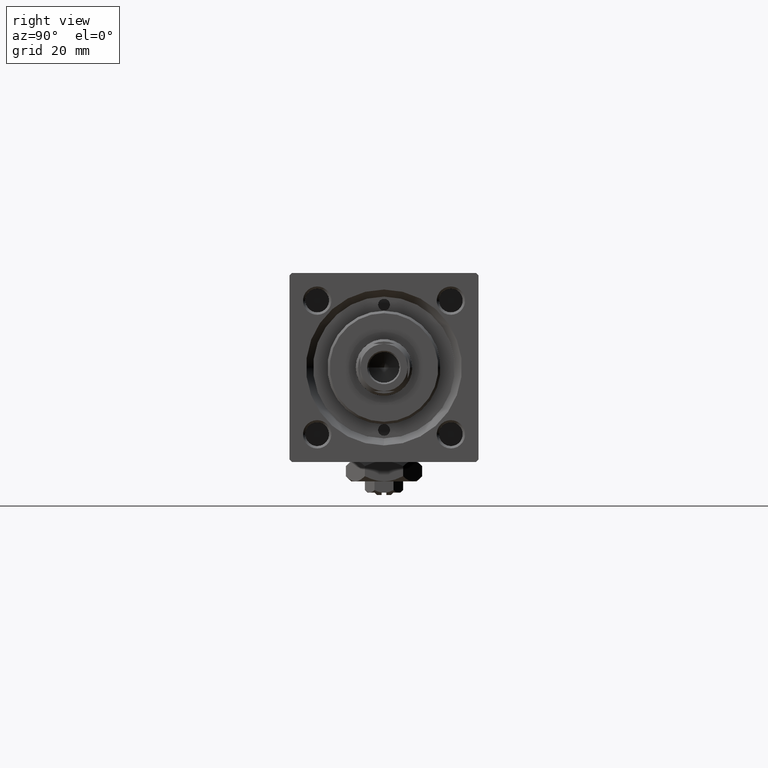
[diagram: clean part render]
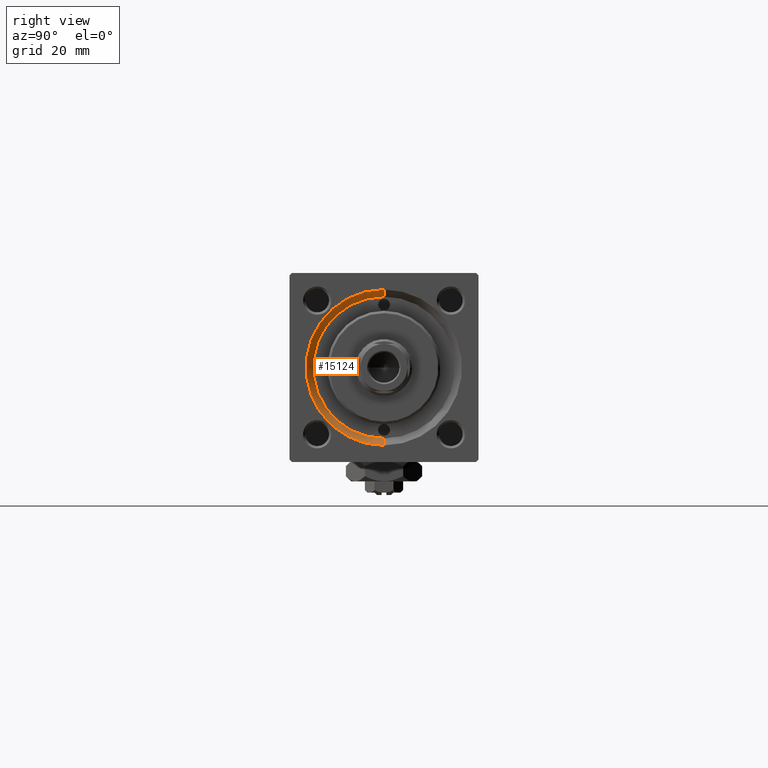
[diagram: same view with one face highlighted and labeled with its STEP entity id]
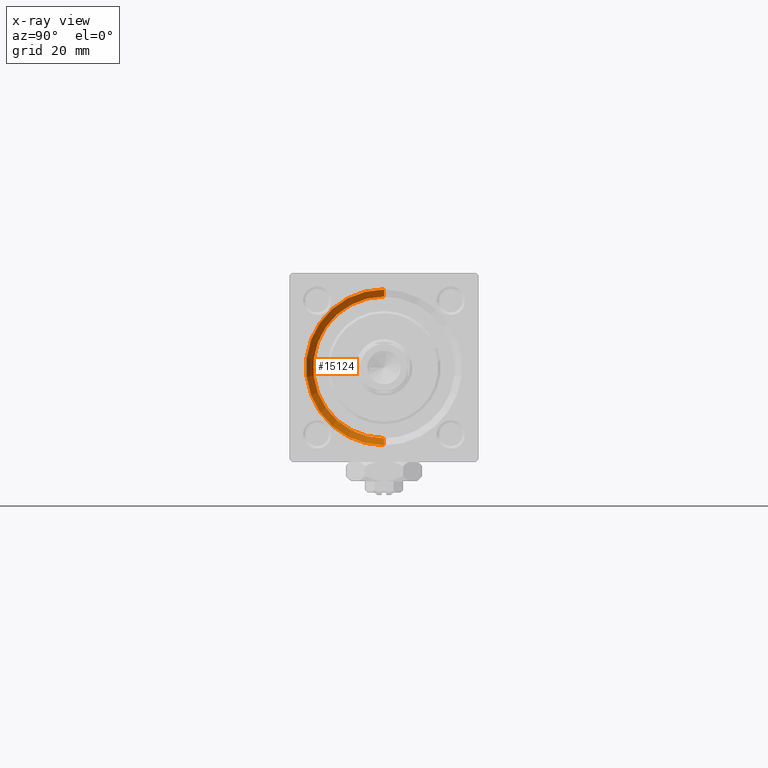
[diagram: x-ray of the same camera — body ghosted, the highlighted face saturated]
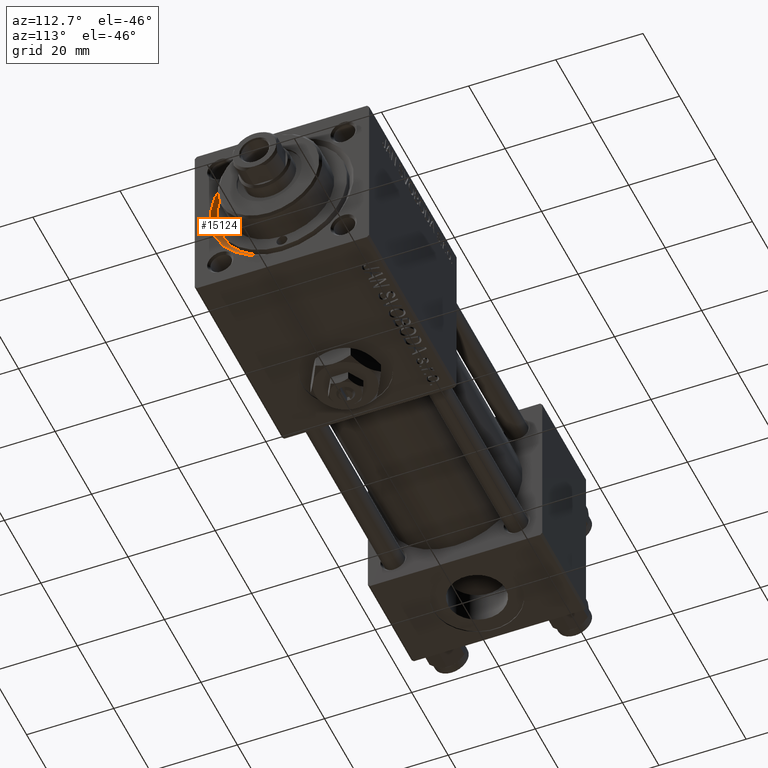
[diagram: same view with one face highlighted and labeled with its STEP entity id]
A machine part, right view. The second image highlights one B-rep face of the part: STEP entity #15124.
The next image is the same camera in x-ray: the body ghosted, the highlighted face saturated — about 0% of this face is hidden behind the body in this view.
A second angle (auxiliary view) of the same face is appended — the face is thin or edge-on in the first view.
In plain terms, the highlighted conical surface has half-angle 45 deg.
Its self-contained STEP definition (entity closure, byte-faithful):
#2301 = EDGE_CURVE ( 'NONE', #17673, #35570, #37602, .T. ) ;
#2739 = DIRECTION ( 'NONE',  ( 0.7071067811865474617, 8.659560562354932858E-17, 0.7071067811865474617 ) ) ;
#3839 = CARTESIAN_POINT ( 'NONE',  ( 117.5000000000000000, 0.000000000000000000, 0.000000000000000000 ) ) ;
#5509 = CARTESIAN_POINT ( 'NONE',  ( 119.0000000000000142, 0.000000000000000000, 0.000000000000000000 ) ) ;
#7532 = DIRECTION ( 'NONE',  ( 1.000000000000000000, 0.000000000000000000, 0.000000000000000000 ) ) ;
#8614 = EDGE_CURVE ( 'NONE', #35570, #15976, #43008, .T. ) ;
#10266 = EDGE_CURVE ( 'NONE', #15976, #29190, #43593, .T. ) ;
#10959 = EDGE_CURVE ( 'NONE', #17673, #29190, #46617, .T. ) ;
#11212 = ORIENTED_EDGE ( 'NONE', *, *, #8614, .F. ) ;
#11414 = ORIENTED_EDGE ( 'NONE', *, *, #10959, .T. ) ;
#14349 = CARTESIAN_POINT ( 'NONE',  ( 117.5000000000000000, 0.000000000000000000, 0.000000000000000000 ) ) ;
#14674 = CARTESIAN_POINT ( 'NONE',  ( 117.5000000000000000, 0.000000000000000000, -15.00000000000000000 ) ) ;
#15124 = ADVANCED_FACE ( 'NONE', ( #44276 ), #20356, .F. ) ;
#15976 = VERTEX_POINT ( 'NONE', #40360 ) ;
#16243 = CARTESIAN_POINT ( 'NONE',  ( 117.5000000000000000, 0.000000000000000000, -15.00000000000000000 ) ) ;
#17584 = VECTOR ( 'NONE', #42747, 1000.000000000000114 ) ;
#17673 = VERTEX_POINT ( 'NONE', #40485 ) ;
#20333 = ORIENTED_EDGE ( 'NONE', *, *, #10266, .F. ) ;
#20356 = CONICAL_SURFACE ( 'NONE', #51385, 15.00000000000000000, 0.7853981633974482790 ) ;
#23555 = DIRECTION ( 'NONE',  ( 0.000000000000000000, 0.000000000000000000, -1.000000000000000000 ) ) ;
#26449 = ORIENTED_EDGE ( 'NONE', *, *, #2301, .F. ) ;
#26882 = VECTOR ( 'NONE', #2739, 1000.000000000000114 ) ;
#29190 = VERTEX_POINT ( 'NONE', #38327 ) ;
#29923 = DIRECTION ( 'NONE',  ( 0.000000000000000000, 0.000000000000000000, 1.000000000000000000 ) ) ;
#31135 = DIRECTION ( 'NONE',  ( 1.000000000000000000, 0.000000000000000000, 0.000000000000000000 ) ) ;
#33549 = AXIS2_PLACEMENT_3D ( 'NONE', #5509, #41485, #29923 ) ;
#35570 = VERTEX_POINT ( 'NONE', #16243 ) ;
#37602 = CIRCLE ( 'NONE', #40131, 15.00000000000000000 ) ;
#38327 = CARTESIAN_POINT ( 'NONE',  ( 119.0000000000000142, 2.020667218593134678E-15, 16.50000000000001421 ) ) ;
#40131 = AXIS2_PLACEMENT_3D ( 'NONE', #14349, #31135, #50074 ) ;
#40360 = CARTESIAN_POINT ( 'NONE',  ( 119.0000000000000142, 0.000000000000000000, -16.50000000000001421 ) ) ;
#40485 = CARTESIAN_POINT ( 'NONE',  ( 117.5000000000000000, 1.836970198721029589E-15, 15.00000000000000000 ) ) ;
#41485 = DIRECTION ( 'NONE',  ( -1.000000000000000000, -0.000000000000000000, -0.000000000000000000 ) ) ;
#41875 = CARTESIAN_POINT ( 'NONE',  ( 117.5000000000000000, 1.836970198721029589E-15, 15.00000000000000000 ) ) ;
#42747 = DIRECTION ( 'NONE',  ( 0.7071067811865474617, 0.000000000000000000, -0.7071067811865474617 ) ) ;
#43008 = LINE ( 'NONE', #14674, #17584 ) ;
#43593 = CIRCLE ( 'NONE', #33549, 16.50000000000001421 ) ;
#44276 = FACE_OUTER_BOUND ( 'NONE', #44553, .T. ) ;
#44553 = EDGE_LOOP ( 'NONE', ( #26449, #11414, #20333, #11212 ) ) ;
#46617 = LINE ( 'NONE', #41875, #26882 ) ;
#50074 = DIRECTION ( 'NONE',  ( 0.000000000000000000, 0.000000000000000000, 1.000000000000000000 ) ) ;
#51385 = AXIS2_PLACEMENT_3D ( 'NONE', #3839, #7532, #23555 ) ;